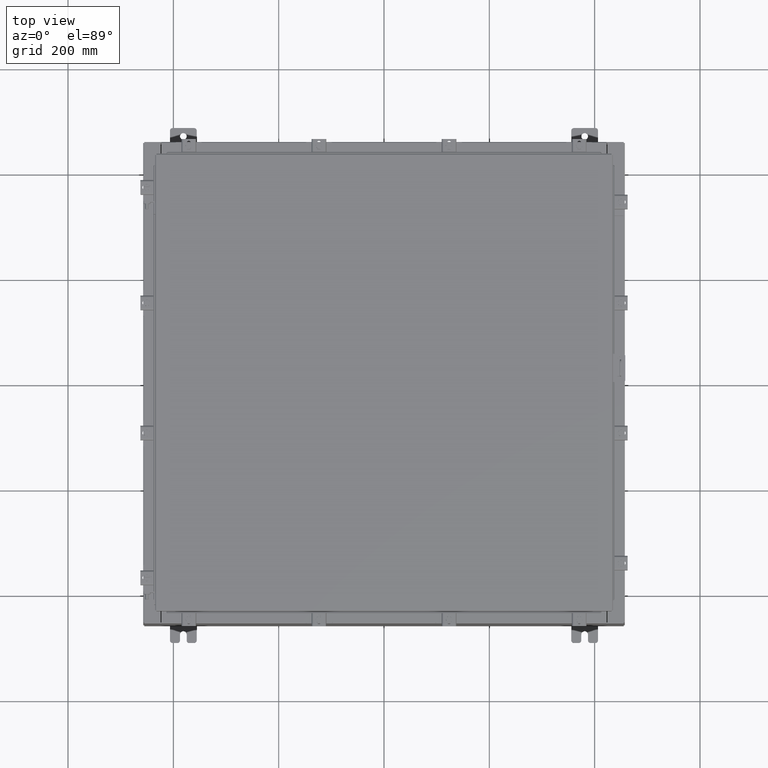
[diagram: clean part render]
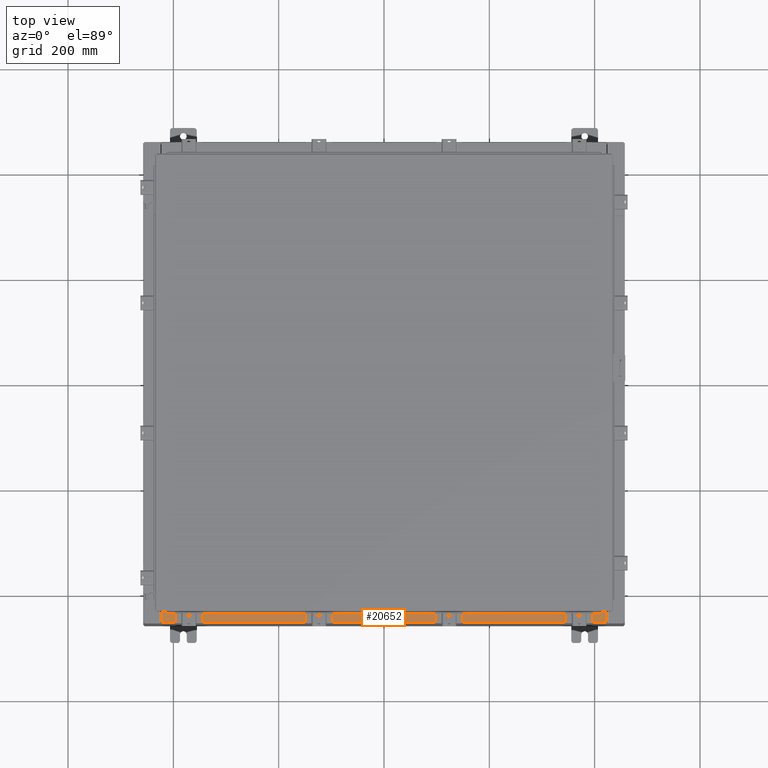
[diagram: same view with one face highlighted and labeled with its STEP entity id]
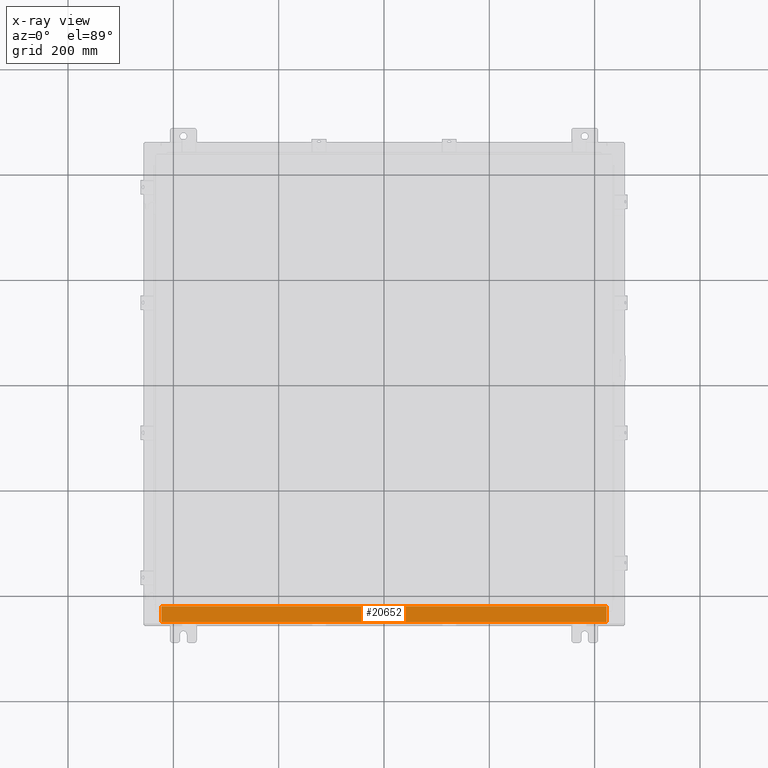
[diagram: x-ray of the same camera — body ghosted, the highlighted face saturated]
A machine part, top view. The second image highlights one B-rep face of the part: STEP entity #20652.
The next image is the same camera in x-ray: the body ghosted, the highlighted face saturated — about 0% of this face is hidden behind the body in this view.
In plain terms, the highlighted planar face has unit normal (-0, -0, 1).
Its self-contained STEP definition (entity closure, byte-faithful):
#3150 = VECTOR ( 'NONE', #9463, 39.37007874015748100 ) ;
#3875 = ORIENTED_EDGE ( 'NONE', *, *, #27077, .F. ) ;
#4530 = LINE ( 'NONE', #19699, #8781 ) ;
#5190 = FACE_OUTER_BOUND ( 'NONE', #26787, .T. ) ;
#5351 = CARTESIAN_POINT ( 'NONE',  ( -2.276882898771239300E-018, 1.610972251716581800E-014, 5.999999999999999100 ) ) ;
#7459 = DIRECTION ( 'NONE',  ( 0.0000000000000000000, -1.000000000000000000, 2.674785894579892700E-015 ) ) ;
#7982 = EDGE_CURVE ( 'NONE', #22210, #8727, #18124, .T. ) ;
#8691 = LINE ( 'NONE', #26177, #3150 ) ;
#8727 = VERTEX_POINT ( 'NONE', #15996 ) ;
#8781 = VECTOR ( 'NONE', #15559, 39.37007874015748100 ) ;
#9463 = DIRECTION ( 'NONE',  ( -1.000000000000000000, 3.284023746380717400E-017, -8.784060394284559800E-032 ) ) ;
#9591 = CARTESIAN_POINT ( 'NONE',  ( -16.63719999999999600, -0.07469999999999973900, 5.999999999999999100 ) ) ;
#10763 = ORIENTED_EDGE ( 'NONE', *, *, #11496, .F. ) ;
#11496 = EDGE_CURVE ( 'NONE', #11599, #22210, #4530, .T. ) ;
#11599 = VERTEX_POINT ( 'NONE', #22076 ) ;
#11718 = DIRECTION ( 'NONE',  ( -0.0000000000000000000, 1.000000000000000000, -2.674785894579892700E-015 ) ) ;
#13104 = EDGE_CURVE ( 'NONE', #20767, #8727, #8691, .T. ) ;
#14681 = ORIENTED_EDGE ( 'NONE', *, *, #7982, .F. ) ;
#15559 = DIRECTION ( 'NONE',  ( -1.000000000000000000, 0.0000000000000000000, 0.0000000000000000000 ) ) ;
#15996 = CARTESIAN_POINT ( 'NONE',  ( -16.63719999999999600, -0.08769999999999972300, 5.999999999999999100 ) ) ;
#16148 = CARTESIAN_POINT ( 'NONE',  ( 16.63720000000000400, -0.08769999999999948700, 5.999999999999999100 ) ) ;
#17092 = ORIENTED_EDGE ( 'NONE', *, *, #13104, .T. ) ;
#17471 = VECTOR ( 'NONE', #11718, 39.37007874015748100 ) ;
#17908 = PLANE ( 'NONE',  #18096 ) ;
#18096 = AXIS2_PLACEMENT_3D ( 'NONE', #5351, #20007, #7459 ) ;
#18124 = LINE ( 'NONE', #9591, #17471 ) ;
#18789 = VECTOR ( 'NONE', #18830, 39.37007874015748100 ) ;
#18830 = DIRECTION ( 'NONE',  ( -0.0000000000000000000, -1.000000000000000000, 3.566381192773190000E-015 ) ) ;
#18923 = CARTESIAN_POINT ( 'NONE',  ( 16.63720000000000400, -1.300299999999999800, 6.000000000000003600 ) ) ;
#19699 = CARTESIAN_POINT ( 'NONE',  ( 16.63720000000000400, -1.287299999999999400, 6.000000000000001800 ) ) ;
#20007 = DIRECTION ( 'NONE',  ( 0.0000000000000000000, 2.674785894579892700E-015, 1.000000000000000000 ) ) ;
#20652 = ADVANCED_FACE ( 'NONE', ( #5190 ), #17908, .T. ) ;
#20767 = VERTEX_POINT ( 'NONE', #16148 ) ;
#22071 = CARTESIAN_POINT ( 'NONE',  ( -16.63719999999999600, -1.287299999999998600, 6.000000000000002700 ) ) ;
#22076 = CARTESIAN_POINT ( 'NONE',  ( 16.63720000000000400, -1.287299999999999400, 6.000000000000003600 ) ) ;
#22210 = VERTEX_POINT ( 'NONE', #22071 ) ;
#25033 = LINE ( 'NONE', #18923, #18789 ) ;
#26177 = CARTESIAN_POINT ( 'NONE',  ( -5.156971724347648400E-018, -0.08769999999999972300, 5.999999999999999100 ) ) ;
#26787 = EDGE_LOOP ( 'NONE', ( #14681, #10763, #3875, #17092 ) ) ;
#27077 = EDGE_CURVE ( 'NONE', #20767, #11599, #25033, .T. ) ;